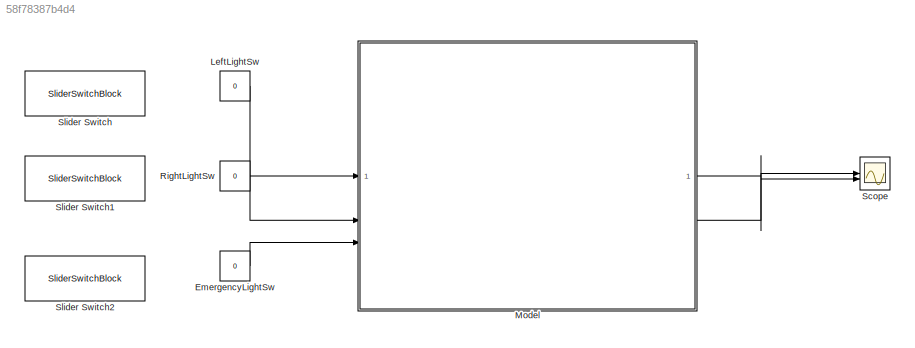
MODEL slx_58f78387b4d4
KIND model
CONFIG AbsTol = auto
CONFIG EnableMultiTasking = off
CONFIG FixedStep = 0.01
CONFIG MaxStep = auto
CONFIG MinStep = auto
CONFIG RelTol = 1e-3
CONFIG SampleTimeConstraint = Unconstrained
CONFIG SolverName = FixedStepAuto
CONFIG StartTime = 0.0
CONFIG StopTime = inf
BLOCK [Constant] EmergencyLightSw
  OutDataTypeStr = boolean
  Value = 0
BLOCK [Constant] LeftLightSw
  OutDataTypeStr = boolean
  Value = 0
BLOCK [ModelReference] Model
  ModelNameDialog = LCM.slx
  ModelReferenceVersion = 1.15
BLOCK [Constant] RightLightSw
  OutDataTypeStr = boolean
  Value = 0
BLOCK [Scope] Scope
  Floating = off
  NumInputPorts = 2
  ScopeSpecificationString = Simulink.scopes.TimeScopeBlockCfg('CurrentConfiguration', extmgr.ConfigurationSet(extmgr.Configuration('Core','General UI',true),extmgr.Configuration('Core','Source UI',true),extmgr.Configuration('Sources','WiredSimulink',true),extmgr.Configuration('Visuals','Time Domain',true,'TimeAxisLabels','All','SerializedDisplays',{struct('MinYLimReal','-0.125','MaxYLimReal','1.125','YLabelReal','','MinYLimM...<+2031ch>
BLOCK [SliderSwitchBlock] Slider Switch
BLOCK [SliderSwitchBlock] Slider Switch1
BLOCK [SliderSwitchBlock] Slider Switch2
LINE EmergencyLightSw:1 -> Model:3
LINE LeftLightSw:1 -> Model:1
LINE Model:1 -> Scope:1
LINE Model:2 -> Scope:2
LINE RightLightSw:1 -> Model:2
